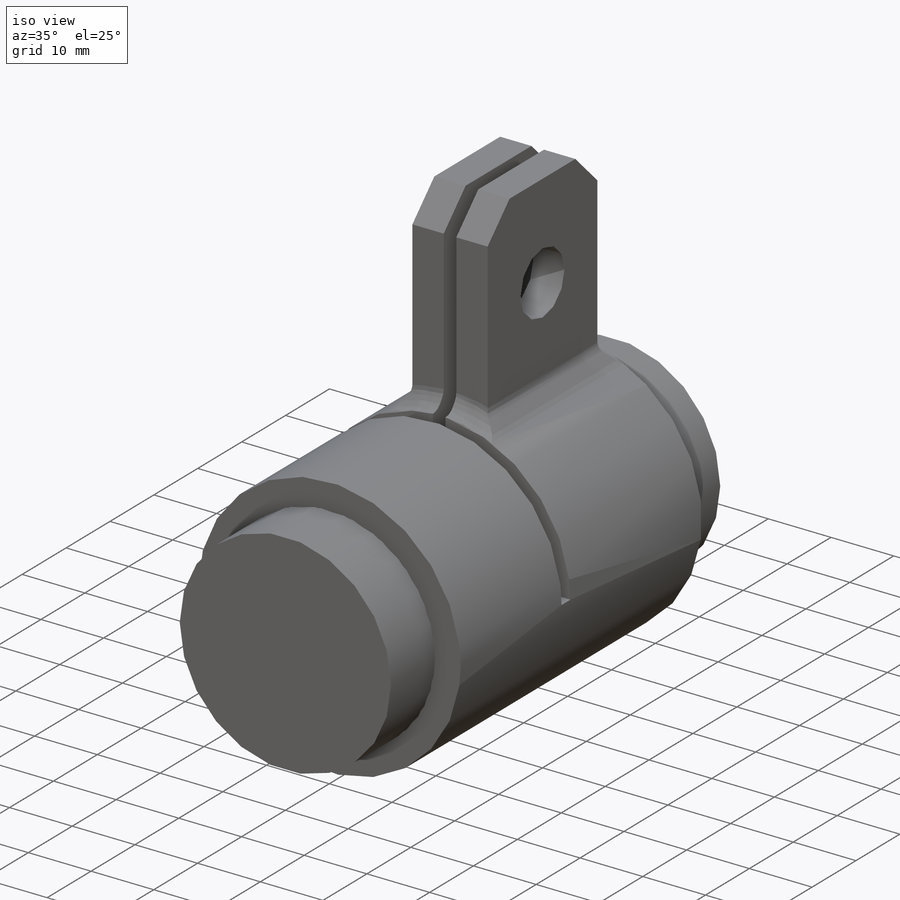
[diagram: iso view]
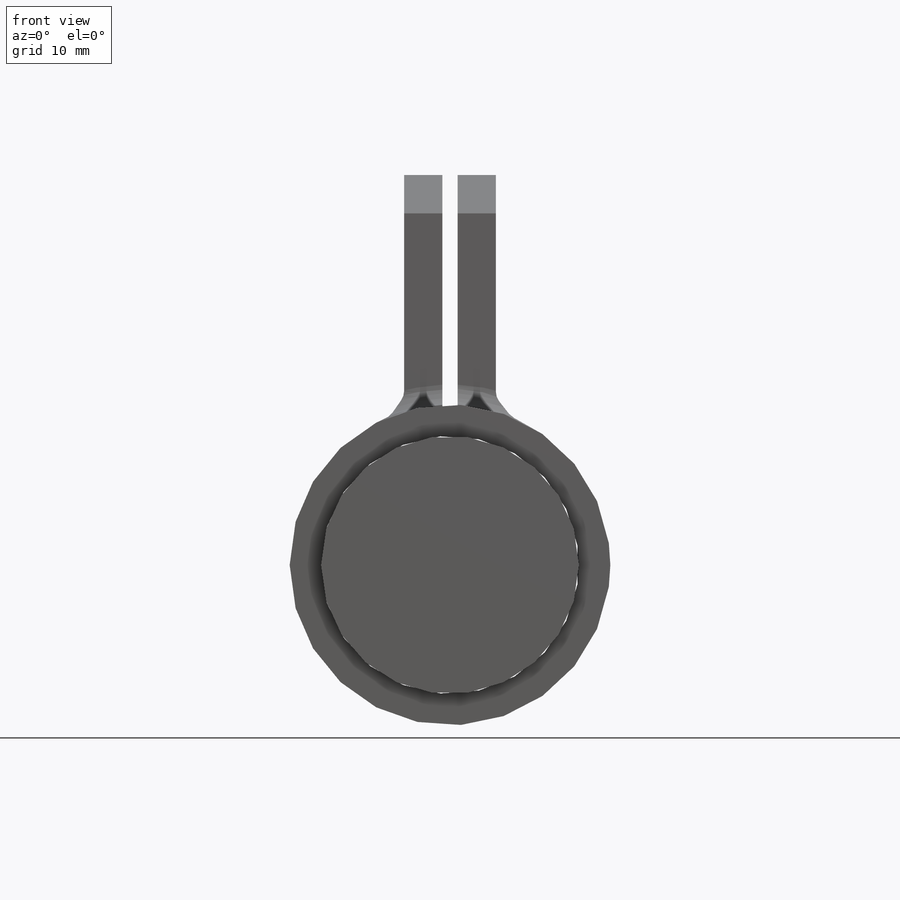
[diagram: front view]
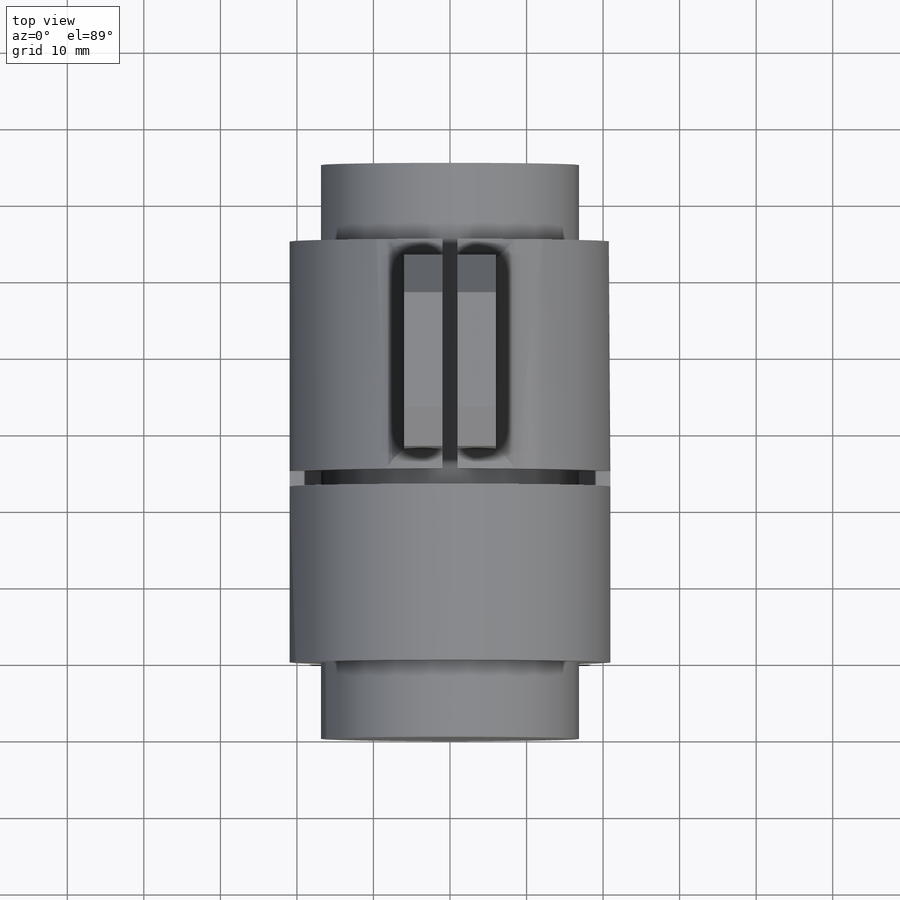
[diagram: top view]
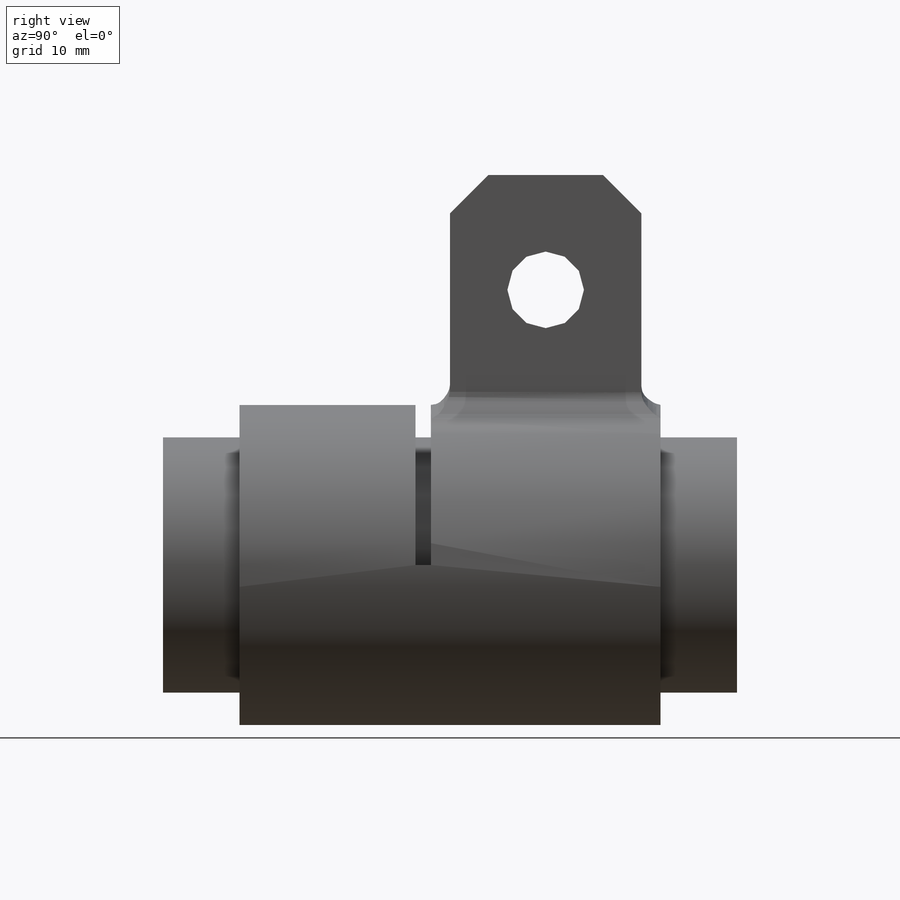
[diagram: right view]
SOLIDWORKS PART (.sldprt)
format: sldprt  version: not decoded by parser v0  size: 540,672 bytes
history: native  units: mm
features: sketch x7, plane x4, extrude x3, cut_extrude x2, chamfer x2, hole x2, fillet x2, material x1 (+10 scaffold rows collapsed)
feature tree (33):
  scaffold x10  (default folders/planes/origin — collapsed)
  material  "1.4301"
  plane  "Ebene vorne"
  plane  "Ebene oben"
  plane  "Ebene rechts"
  sketch  "Skizze1"  dims[D1=33.7mm D2=41.9mm]
  extrude  "Aufsatz-Linear austragen1"  Depth=55mm
  sketch  "Skizze2"  dims[c1.D1=2.0mm c1.D2=30.0mm c1.D3=2.0mm c2.D1=30.0mm c2.D2=2.0mm]
  cut_extrude  "Schnitt-Linear austragen1"  Depth=55mm
  cut_extrude  "Schnitt-Linear austragen2"  [1 undecoded]
  sketch  "Skizze2<3>"  dims[D1=2.0mm]
  sketch  "Skizze3"  dims[D1=5.0mm D2=30.0mm]
  extrude  "Aufsatz-Linear austragen2"  Depth=25mm
  chamfer  "Fase1"  Distance=2mm Angle=35deg
  hole  "Ø10.0 (10) Durchmesser Bohrung1"  Diameter=10mm Depth=26.95mm
  sketch  "Skizze5"  dims[D1=15.0mm]
  sketch  "Skizze4"  dims[hole-wizard template sketch: 59 standard entries collapsed; hole parameters kept: c18.Bohrerdurchmesser=10.0mm c18.Bohrungstiefe=26.95mm]
  chamfer  "Fase2"  Distance=5mm Angle=45deg
  extrude  "Aufsatz-Linear austragen3"  [1 undecoded]
  sketch  "Skizze1<2>"  dims[D1=10.0mm]
  hole  "Fläche verschieben2"  Diameter=0.5mm
  plane  "Ebene1"
  fillet  "Verrundung1"  Radius=2mm
  fillet  "Verrundung2"  Radius=2mm
decode coverage: 16 of 18 modeling features carry decoded parameters
note: ~ marks probable driven/reference dimensions
note: 2 parameter values undecoded
note: suppression state not decoded; provenance and decode notes live in map.json
